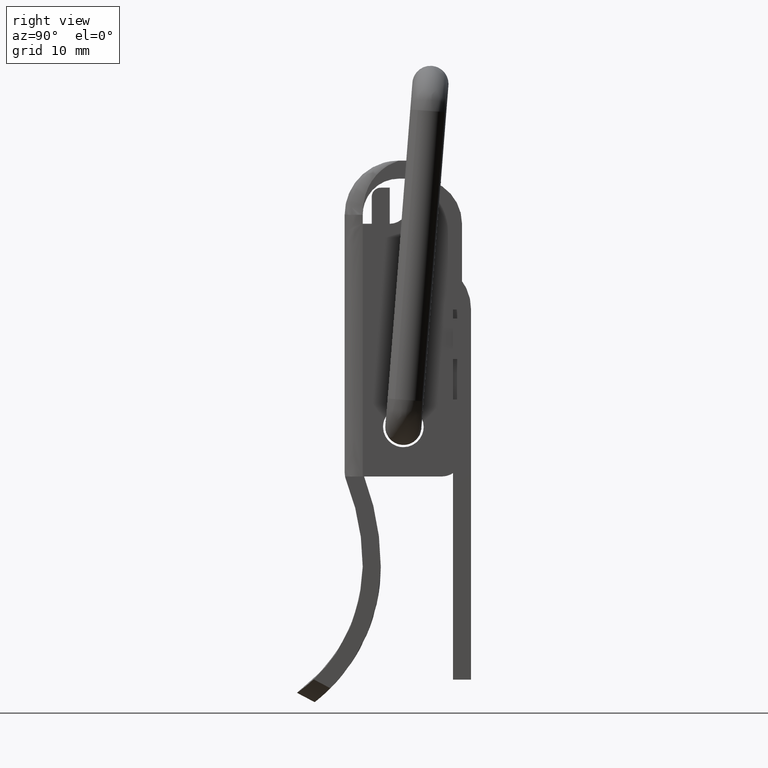
[diagram: clean part render]
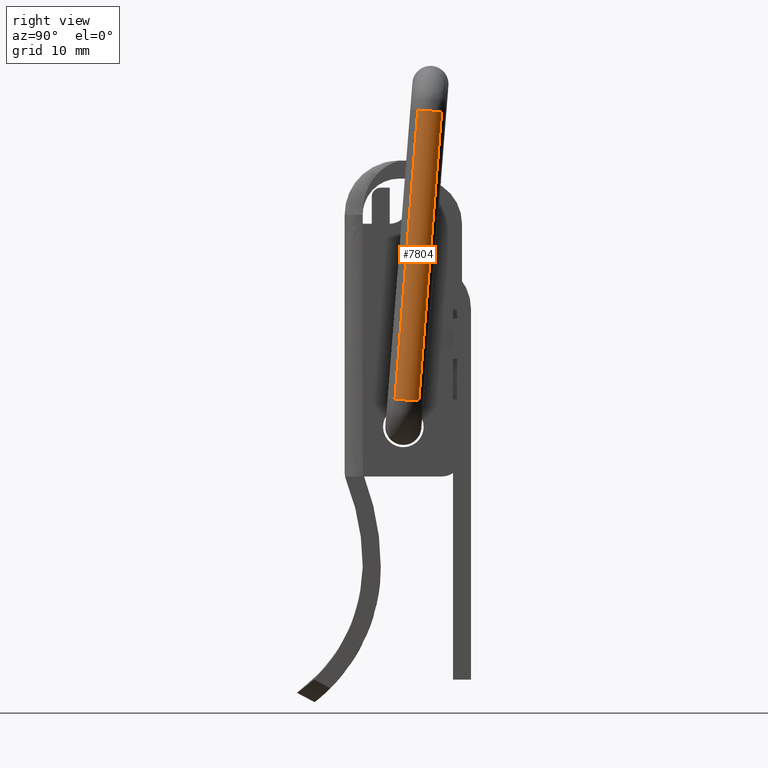
[diagram: same view with one face highlighted and labeled with its STEP entity id]
A machine part, right view. The second image highlights one B-rep face of the part: STEP entity #7804.
In plain terms, the highlighted face is a freeform B-spline surface patch.
Its self-contained STEP definition (entity closure, byte-faithful):
#7732=CARTESIAN_POINT('',(17.120705324658456,-1.171884913557532,2.197044071656591));
#7733=CARTESIAN_POINT('',(18.164259114505729,0.271339727536855,2.197044071656591));
#7734=CARTESIAN_POINT('',(16.851180415231319,1.474554673620249,2.197044071656591));
#7735=CARTESIAN_POINT('',(17.120705324658456,-1.171884913557534,35.941266932203781));
#7736=CARTESIAN_POINT('',(18.164259114505729,0.271339727536852,35.941266932203774));
#7737=CARTESIAN_POINT('',(16.851180415231319,1.474554673620246,35.941266932203781));
#7745=(BOUNDED_SURFACE()B_SPLINE_SURFACE(2,1,((#7732,#7735),(#7733,#7736),(#7734,#7737)),.UNSPECIFIED.,.F.,.F.,.U.)B_SPLINE_SURFACE_WITH_KNOTS((3,3),(2,2),(0.0,3.045267912687112),(0.0,33.744222860547190),.UNSPECIFIED.)GEOMETRIC_REPRESENTATION_ITEM()RATIONAL_B_SPLINE_SURFACE(((0.956886118190660,0.956886118190660),(0.730538238691624,0.730538238691624),(1.0,1.0)))REPRESENTATION_ITEM('')SURFACE());
#7746=CARTESIAN_POINT('',(17.500000000000000,-1.942300E-028,35.118237105093101));
#7747=VERTEX_POINT('',#7746);
#7748=CARTESIAN_POINT('',(17.120705282292398,-1.171884972159153,35.118237105096640));
#7749=VERTEX_POINT('',#7748);
#7750=CARTESIAN_POINT('',(17.500000000000000,-1.942300E-028,35.118237105093101));
#7751=CARTESIAN_POINT('',(17.500155376087200,-0.221743435512792,35.118237105093108));
#7752=CARTESIAN_POINT('',(17.429805996039391,-0.638985871527173,35.118237105093733));
#7753=CARTESIAN_POINT('',(17.235417275256559,-1.013391199025732,35.118237105095602));
#7754=CARTESIAN_POINT('',(17.120705282292398,-1.171884972159153,35.118237105096640));
#7755=B_SPLINE_CURVE_WITH_KNOTS('',3,(#7750,#7751,#7752,#7753,#7754),.UNSPECIFIED.,.F.,.U.,(4,1,4),(0.000000016198580,0.665174721484431,1.252105216998196),.UNSPECIFIED.);
#7756=EDGE_CURVE('',#7747,#7749,#7755,.T.);
#7757=ORIENTED_EDGE('',*,*,#7756,.T.);
#7758=CARTESIAN_POINT('',(17.120705295809071,-1.171884953455932,3.000000000100478));
#7759=VERTEX_POINT('',#7758);
#7760=CARTESIAN_POINT('',(17.120705295809071,-1.171884953455932,3.000000000100478));
#7761=CARTESIAN_POINT('',(17.120705282292398,-1.171884972159153,35.118237105096640));
#7762=QUASI_UNIFORM_CURVE('',1,(#7760,#7761),.UNSPECIFIED.,.F.,.U.);
#7763=EDGE_CURVE('',#7759,#7749,#7762,.T.);
#7764=ORIENTED_EDGE('',*,*,#7763,.F.);
#7765=CARTESIAN_POINT('',(17.500000000000000,9.011451E-016,3.000000000001280));
#7766=VERTEX_POINT('',#7765);
#7767=CARTESIAN_POINT('',(17.500000000000000,9.011451E-016,3.000000000001280));
#7768=CARTESIAN_POINT('',(17.500138653017281,-0.221739404681461,3.000000000060417));
#7769=CARTESIAN_POINT('',(17.429824624025692,-0.638991928902403,3.000000000132069));
#7770=CARTESIAN_POINT('',(17.235413760313278,-1.013389428248981,3.000000000122659));
#7771=CARTESIAN_POINT('',(17.120705295809071,-1.171884953455932,3.000000000100478));
#7772=B_SPLINE_CURVE_WITH_KNOTS('',3,(#7767,#7768,#7769,#7770,#7771),.UNSPECIFIED.,.F.,.U.,(4,1,4),(0.000000016198445,0.665174709224045,1.252105193919298),.UNSPECIFIED.);
#7773=EDGE_CURVE('',#7766,#7759,#7772,.T.);
#7774=ORIENTED_EDGE('',*,*,#7773,.F.);
#7775=CARTESIAN_POINT('',(16.851180352888210,1.474554730606532,2.999999999919746));
#7776=VERTEX_POINT('',#7775);
#7777=CARTESIAN_POINT('',(16.851180352888210,1.474554730606532,2.999999999919746));
#7778=CARTESIAN_POINT('',(16.959429647466958,1.375387191339935,2.999999999933345));
#7779=CARTESIAN_POINT('',(17.176862040668020,1.126935910417808,2.999999999960678));
#7780=CARTESIAN_POINT('',(17.430949499106820,0.630354557931044,2.999999999992599));
#7781=CARTESIAN_POINT('',(17.500119996477249,0.224538257431650,3.000000000001282));
#7782=CARTESIAN_POINT('',(17.500000000000000,9.011451E-016,3.000000000001280));
#7783=B_SPLINE_CURVE_WITH_KNOTS('',3,(#7777,#7778,#7779,#7780,#7781,#7782),.UNSPECIFIED.,.F.,.U.,(4,1,1,4),(0.000000026524520,0.440426229916162,0.984475786740946,1.658074465408362),.UNSPECIFIED.);
#7784=EDGE_CURVE('',#7776,#7766,#7783,.T.);
#7785=ORIENTED_EDGE('',*,*,#7784,.F.);
#7786=CARTESIAN_POINT('',(16.851180356896538,1.474554727074220,35.118237105129481));
#7787=VERTEX_POINT('',#7786);
#7788=CARTESIAN_POINT('',(16.851180352888210,1.474554730606532,2.999999999919746));
#7789=CARTESIAN_POINT('',(16.851180356896538,1.474554727074220,35.118237105129481));
#7790=QUASI_UNIFORM_CURVE('',1,(#7788,#7789),.UNSPECIFIED.,.F.,.U.);
#7791=EDGE_CURVE('',#7776,#7787,#7790,.T.);
#7792=ORIENTED_EDGE('',*,*,#7791,.T.);
#7793=CARTESIAN_POINT('',(16.851180356896538,1.474554727074220,35.118237105129481));
#7794=CARTESIAN_POINT('',(16.972180585445042,1.363731526657456,35.118237105063152));
#7795=CARTESIAN_POINT('',(17.186650821377359,1.112077568184736,35.118237104965573));
#7796=CARTESIAN_POINT('',(17.433866190078898,0.613066110701421,35.118237104928980));
#7797=CARTESIAN_POINT('',(17.500129419427960,0.224545280558037,35.118237105011460));
#7798=CARTESIAN_POINT('',(17.500000000000000,-1.942300E-028,35.118237105093101));
#7799=B_SPLINE_CURVE_WITH_KNOTS('',3,(#7793,#7794,#7795,#7796,#7797,#7798),.UNSPECIFIED.,.F.,.U.,(4,1,1,4),(0.000000026524182,0.492241984389309,0.984475783613335,1.658074460141089),.UNSPECIFIED.);
#7800=EDGE_CURVE('',#7787,#7747,#7799,.T.);
#7801=ORIENTED_EDGE('',*,*,#7800,.T.);
#7802=EDGE_LOOP('',(#7757,#7764,#7774,#7785,#7792,#7801));
#7803=FACE_OUTER_BOUND('',#7802,.T.);
#7804=ADVANCED_FACE('',(#7803),#7745,.T.);